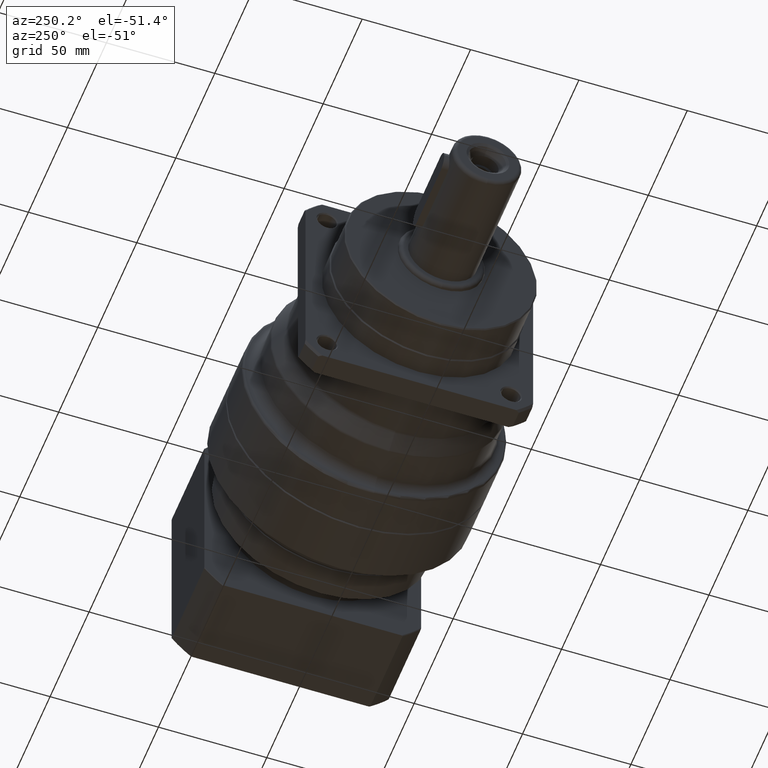
[diagram: clean part render]
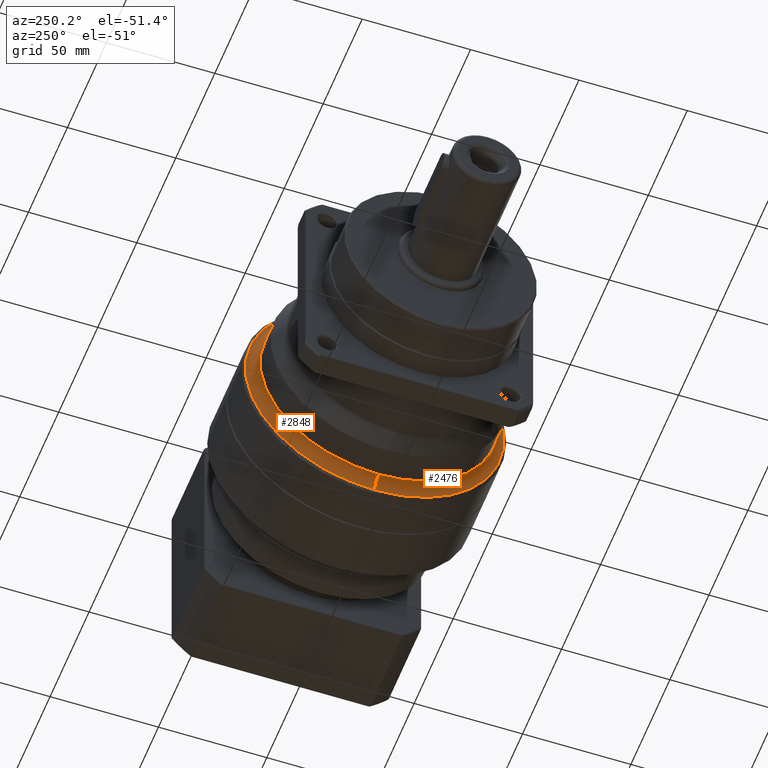
[diagram: same view with one multi-face feature highlighted, each face labeled with its STEP entity id]
A machine part, auxiliary view. The highlighted faces form ONE feature: a constant-radius fillet chain: 2 tangent blend faces with common blend radius 5 mm. The faces share edges in the B-rep.
Their STEP definitions:
[1] entity #2476 (Torus):
#73 = CARTESIAN_POINT ( 'NONE',  ( 143.8355272907414000, 4.633161260266395400, 59.69999999980133500 ) ) ;
#259 = VERTEX_POINT ( 'NONE', #4941 ) ;
#325 = ORIENTED_EDGE ( 'NONE', *, *, #4110, .T. ) ;
#577 = DIRECTION ( 'NONE',  ( -1.000000000000000000, -0.0000000000000000000, -0.0000000000000000000 ) ) ;
#674 = DIRECTION ( 'NONE',  ( 0.0000000000000000000, 0.0000000000000000000, 1.000000000000000000 ) ) ;
#855 = DIRECTION ( 'NONE',  ( -0.0000000000000000000, 1.000000000000000000, 1.224646799147353200E-016 ) ) ;
#864 = CIRCLE ( 'NONE', #2642, 59.69999999980133500 ) ;
#871 = TOROIDAL_SURFACE ( 'NONE', #3606, 59.69999999980133500, 4.999999999835303300 ) ;
#882 = DIRECTION ( 'NONE',  ( 0.0000000000000000000, 0.0000000000000000000, 1.000000000000000000 ) ) ;
#928 = FACE_OUTER_BOUND ( 'NONE', #2686, .T. ) ;
#983 = EDGE_CURVE ( 'NONE', #259, #2146, #1001, .T. ) ;
#1001 = CIRCLE ( 'NONE', #2875, 4.999999999835303300 ) ;
#1417 = ORIENTED_EDGE ( 'NONE', *, *, #3264, .F. ) ;
#1508 = CARTESIAN_POINT ( 'NONE',  ( 143.8355272907414000, 4.633161260266395400, 0.0000000000000000000 ) ) ;
#1931 = DIRECTION ( 'NONE',  ( -1.000000000000000000, -0.0000000000000000000, -0.0000000000000000000 ) ) ;
#1944 = CARTESIAN_POINT ( 'NONE',  ( 148.8355272905766900, 4.633161260266394500, 0.0000000000000000000 ) ) ;
#1950 = AXIS2_PLACEMENT_3D ( 'NONE', #2199, #577, #882 ) ;
#2000 = DIRECTION ( 'NONE',  ( 0.0000000000000000000, -1.734723476033947700E-016, 1.000000000000000000 ) ) ;
#2021 = CARTESIAN_POINT ( 'NONE',  ( 148.8355272905766900, 4.633161260266401600, 59.69999999980133500 ) ) ;
#2146 = VERTEX_POINT ( 'NONE', #2021 ) ;
#2155 = ORIENTED_EDGE ( 'NONE', *, *, #983, .F. ) ;
#2156 = ORIENTED_EDGE ( 'NONE', *, *, #2948, .T. ) ;
#2181 = AXIS2_PLACEMENT_3D ( 'NONE', #4831, #855, #2000 ) ;
#2199 = CARTESIAN_POINT ( 'NONE',  ( 143.8355272907414000, 4.633161260266394500, 0.0000000000000000000 ) ) ;
#2252 = DIRECTION ( 'NONE',  ( -1.000000000000000000, -0.0000000000000000000, -0.0000000000000000000 ) ) ;
#2302 = DIRECTION ( 'NONE',  ( 0.0000000000000000000, 0.0000000000000000000, 1.000000000000000000 ) ) ;
#2476 = ADVANCED_FACE ( 'NONE', ( #928 ), #871, .F. ) ;
#2642 = AXIS2_PLACEMENT_3D ( 'NONE', #1944, #1931, #2302 ) ;
#2686 = EDGE_LOOP ( 'NONE', ( #1417, #325, #2156, #2155 ) ) ;
#2794 = CARTESIAN_POINT ( 'NONE',  ( 148.8355272905766900, 4.633161260266394500, -59.69999999980133500 ) ) ;
#2871 = DIRECTION ( 'NONE',  ( 0.0000000000000000000, -1.000000000000000000, 0.0000000000000000000 ) ) ;
#2875 = AXIS2_PLACEMENT_3D ( 'NONE', #73, #2871, #3719 ) ;
#2948 = EDGE_CURVE ( 'NONE', #3144, #2146, #864, .T. ) ;
#3144 = VERTEX_POINT ( 'NONE', #2794 ) ;
#3197 = CIRCLE ( 'NONE', #2181, 4.999999999835303300 ) ;
#3264 = EDGE_CURVE ( 'NONE', #5063, #259, #3622, .T. ) ;
#3606 = AXIS2_PLACEMENT_3D ( 'NONE', #1508, #2252, #674 ) ;
#3622 = CIRCLE ( 'NONE', #1950, 54.69999999996603200 ) ;
#3719 = DIRECTION ( 'NONE',  ( 0.0000000000000000000, 0.0000000000000000000, -1.000000000000000000 ) ) ;
#4110 = EDGE_CURVE ( 'NONE', #5063, #3144, #3197, .T. ) ;
#4749 = CARTESIAN_POINT ( 'NONE',  ( 143.8355272907414000, 4.633161260266402500, -54.69999999996603200 ) ) ;
#4831 = CARTESIAN_POINT ( 'NONE',  ( 143.8355272907414000, 4.633161260266402500, -59.69999999980133500 ) ) ;
#4941 = CARTESIAN_POINT ( 'NONE',  ( 143.8355272907414000, 4.633161260266394500, 54.69999999996603200 ) ) ;
#5063 = VERTEX_POINT ( 'NONE', #4749 ) ;
[2] entity #2848 (Torus):
#73 = CARTESIAN_POINT ( 'NONE',  ( 143.8355272907414000, 4.633161260266395400, 59.69999999980133500 ) ) ;
#259 = VERTEX_POINT ( 'NONE', #4941 ) ;
#309 = AXIS2_PLACEMENT_3D ( 'NONE', #4887, #2898, #515 ) ;
#313 = CIRCLE ( 'NONE', #1062, 59.69999999980133500 ) ;
#462 = DIRECTION ( 'NONE',  ( -1.000000000000000000, -0.0000000000000000000, -0.0000000000000000000 ) ) ;
#515 = DIRECTION ( 'NONE',  ( 0.0000000000000000000, 0.0000000000000000000, 1.000000000000000000 ) ) ;
#594 = EDGE_CURVE ( 'NONE', #2146, #3144, #313, .T. ) ;
#855 = DIRECTION ( 'NONE',  ( -0.0000000000000000000, 1.000000000000000000, 1.224646799147353200E-016 ) ) ;
#983 = EDGE_CURVE ( 'NONE', #259, #2146, #1001, .T. ) ;
#1001 = CIRCLE ( 'NONE', #2875, 4.999999999835303300 ) ;
#1062 = AXIS2_PLACEMENT_3D ( 'NONE', #2900, #462, #1237 ) ;
#1237 = DIRECTION ( 'NONE',  ( 0.0000000000000000000, 0.0000000000000000000, 1.000000000000000000 ) ) ;
#1254 = ORIENTED_EDGE ( 'NONE', *, *, #983, .T. ) ;
#1516 = ORIENTED_EDGE ( 'NONE', *, *, #2338, .F. ) ;
#2000 = DIRECTION ( 'NONE',  ( 0.0000000000000000000, -1.734723476033947700E-016, 1.000000000000000000 ) ) ;
#2021 = CARTESIAN_POINT ( 'NONE',  ( 148.8355272905766900, 4.633161260266401600, 59.69999999980133500 ) ) ;
#2146 = VERTEX_POINT ( 'NONE', #2021 ) ;
#2181 = AXIS2_PLACEMENT_3D ( 'NONE', #4831, #855, #2000 ) ;
#2200 = ORIENTED_EDGE ( 'NONE', *, *, #594, .T. ) ;
#2221 = DIRECTION ( 'NONE',  ( 0.0000000000000000000, 0.0000000000000000000, 1.000000000000000000 ) ) ;
#2338 = EDGE_CURVE ( 'NONE', #259, #5063, #3236, .T. ) ;
#2419 = TOROIDAL_SURFACE ( 'NONE', #309, 59.69999999980133500, 4.999999999835303300 ) ;
#2601 = CARTESIAN_POINT ( 'NONE',  ( 143.8355272907414000, 4.633161260266394500, 0.0000000000000000000 ) ) ;
#2794 = CARTESIAN_POINT ( 'NONE',  ( 148.8355272905766900, 4.633161260266394500, -59.69999999980133500 ) ) ;
#2848 = ADVANCED_FACE ( 'NONE', ( #4390 ), #2419, .F. ) ;
#2871 = DIRECTION ( 'NONE',  ( 0.0000000000000000000, -1.000000000000000000, 0.0000000000000000000 ) ) ;
#2875 = AXIS2_PLACEMENT_3D ( 'NONE', #73, #2871, #3719 ) ;
#2898 = DIRECTION ( 'NONE',  ( -1.000000000000000000, -0.0000000000000000000, -0.0000000000000000000 ) ) ;
#2900 = CARTESIAN_POINT ( 'NONE',  ( 148.8355272905766900, 4.633161260266394500, 0.0000000000000000000 ) ) ;
#2914 = ORIENTED_EDGE ( 'NONE', *, *, #4110, .F. ) ;
#2950 = EDGE_LOOP ( 'NONE', ( #2914, #1516, #1254, #2200 ) ) ;
#3144 = VERTEX_POINT ( 'NONE', #2794 ) ;
#3197 = CIRCLE ( 'NONE', #2181, 4.999999999835303300 ) ;
#3236 = CIRCLE ( 'NONE', #4692, 54.69999999996603200 ) ;
#3719 = DIRECTION ( 'NONE',  ( 0.0000000000000000000, 0.0000000000000000000, -1.000000000000000000 ) ) ;
#4110 = EDGE_CURVE ( 'NONE', #5063, #3144, #3197, .T. ) ;
#4390 = FACE_OUTER_BOUND ( 'NONE', #2950, .T. ) ;
#4692 = AXIS2_PLACEMENT_3D ( 'NONE', #2601, #5029, #2221 ) ;
#4749 = CARTESIAN_POINT ( 'NONE',  ( 143.8355272907414000, 4.633161260266402500, -54.69999999996603200 ) ) ;
#4831 = CARTESIAN_POINT ( 'NONE',  ( 143.8355272907414000, 4.633161260266402500, -59.69999999980133500 ) ) ;
#4887 = CARTESIAN_POINT ( 'NONE',  ( 143.8355272907414000, 4.633161260266395400, 0.0000000000000000000 ) ) ;
#4941 = CARTESIAN_POINT ( 'NONE',  ( 143.8355272907414000, 4.633161260266394500, 54.69999999996603200 ) ) ;
#5029 = DIRECTION ( 'NONE',  ( -1.000000000000000000, -0.0000000000000000000, -0.0000000000000000000 ) ) ;
#5063 = VERTEX_POINT ( 'NONE', #4749 ) ;